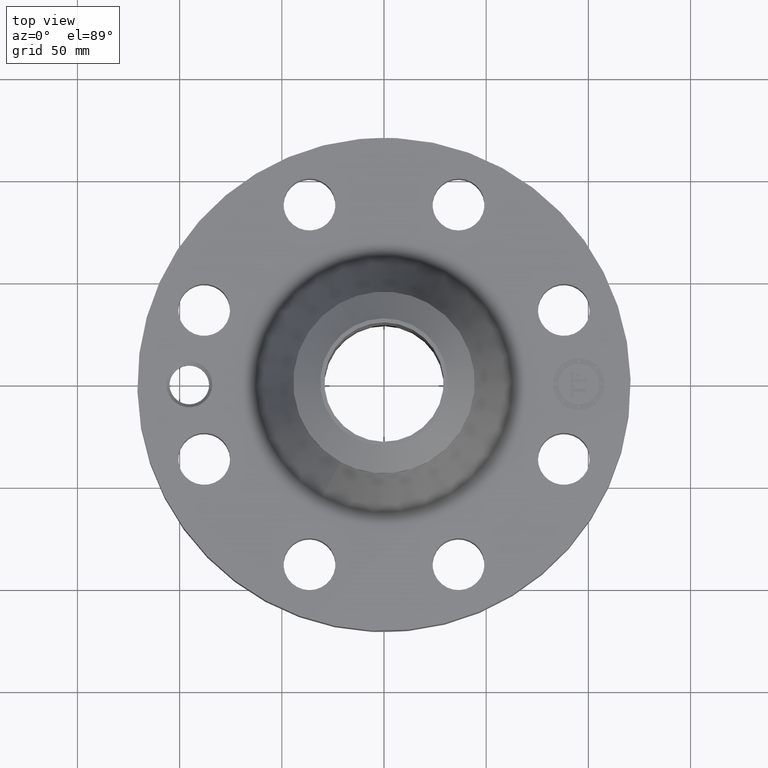
[diagram: clean part render]
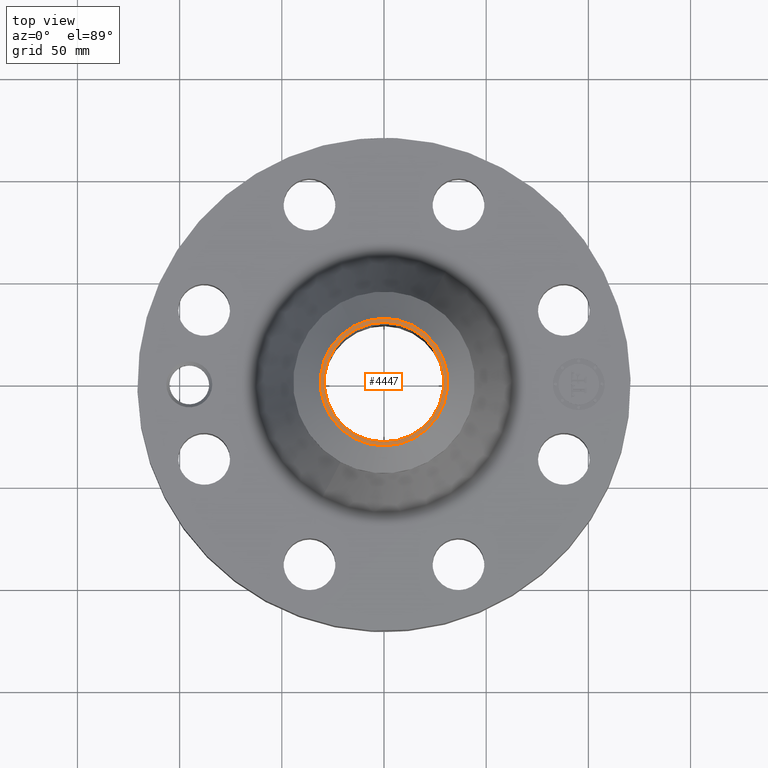
[diagram: same view with one face highlighted and labeled with its STEP entity id]
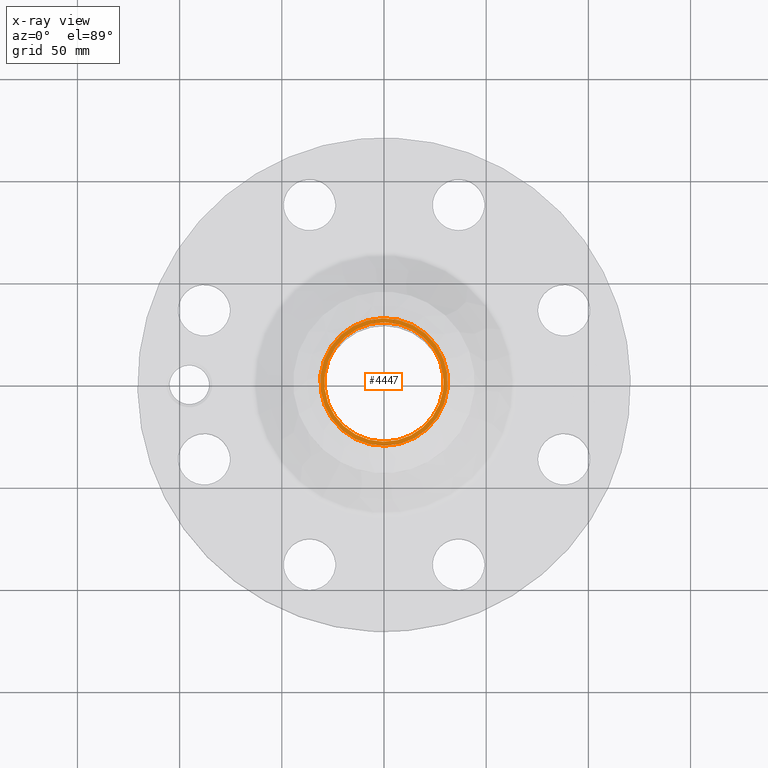
[diagram: x-ray of the same camera — body ghosted, the highlighted face saturated]
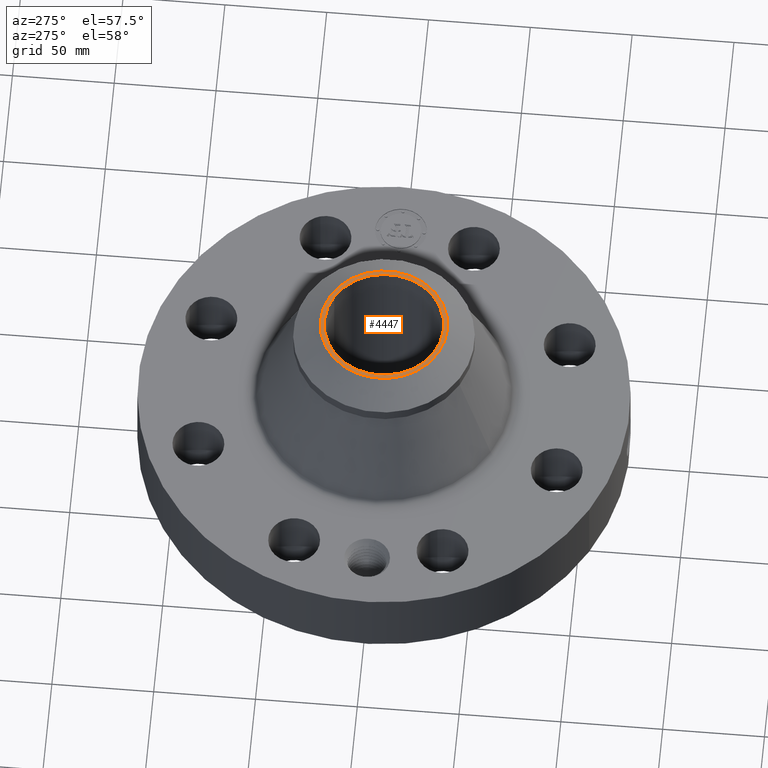
[diagram: same view with one face highlighted and labeled with its STEP entity id]
A machine part, top view. The second image highlights one B-rep face of the part: STEP entity #4447.
The next image is the same camera in x-ray: the body ghosted, the highlighted face saturated — about 0% of this face is hidden behind the body in this view.
A second angle (auxiliary view) of the same face is appended — the face is thin or edge-on in the first view.
In plain terms, the highlighted planar face has unit normal (0, 0, -1).
Its self-contained STEP definition (entity closure, byte-faithful):
#3104=AXIS2_PLACEMENT_3D('Circle Axis2P3D',#3102,#3103,$) ;
#3172=AXIS2_PLACEMENT_3D('Circle Axis2P3D',#3170,#3171,$) ;
#4423=AXIS2_PLACEMENT_3D('Plane Axis2P3D',#4420,#4421,#4422) ;
#4427=AXIS2_PLACEMENT_3D('Circle Axis2P3D',#4425,#4426,$) ;
#4436=AXIS2_PLACEMENT_3D('Circle Axis2P3D',#4434,#4435,$) ;
#3102=CARTESIAN_POINT('Axis2P3D Location',(0.,0.,4.25000000002)) ;
#3106=CARTESIAN_POINT('Vertex',(0.551339369397,1.00921994618,4.25000000002)) ;
#3108=CARTESIAN_POINT('Vertex',(-0.551339369397,-1.00921994618,4.25000000002)) ;
#3170=CARTESIAN_POINT('Axis2P3D Location',(0.,0.,4.25000000002)) ;
#4420=CARTESIAN_POINT('Axis2P3D Location',(0.,1.75000000001,4.25000000002)) ;
#4425=CARTESIAN_POINT('Axis2P3D Location',(0.,0.,4.25000000002)) ;
#4429=CARTESIAN_POINT('Vertex',(0.589089411807,-1.0783209353,4.25000000002)) ;
#4431=CARTESIAN_POINT('Vertex',(-0.589089411807,1.0783209353,4.25000000002)) ;
#4434=CARTESIAN_POINT('Axis2P3D Location',(0.,0.,4.25000000002)) ;
#3103=DIRECTION('Axis2P3D Direction',(0.,0.,-0.0393700787402)) ;
#3171=DIRECTION('Axis2P3D Direction',(0.,0.,-0.0393700787402)) ;
#4421=DIRECTION('Axis2P3D Direction',(0.,0.,-0.0393700787402)) ;
#4422=DIRECTION('Axis2P3D XDirection',(0.0393700787402,0.,0.)) ;
#4426=DIRECTION('Axis2P3D Direction',(0.,0.,-0.0393700787402)) ;
#4435=DIRECTION('Axis2P3D Direction',(0.,0.,-0.0393700787402)) ;
#4440=ORIENTED_EDGE('',*,*,#4433,.T.) ;
#4441=ORIENTED_EDGE('',*,*,#4438,.T.) ;
#4444=ORIENTED_EDGE('',*,*,#3174,.T.) ;
#4445=ORIENTED_EDGE('',*,*,#3110,.T.) ;
#4446=FACE_BOUND('',#4443,.T.) ;
#4447=ADVANCED_FACE('PartBody',(#4442,#4446),#4424,.F.) ;
#3105=CIRCLE('generated circle',#3104,1.15) ;
#3173=CIRCLE('generated circle',#3172,1.15) ;
#4428=CIRCLE('generated circle',#4427,1.22874015748) ;
#4437=CIRCLE('generated circle',#4436,1.22874015748) ;
#3110=EDGE_CURVE('',#3107,#3109,#3105,.T.) ;
#3174=EDGE_CURVE('',#3109,#3107,#3173,.T.) ;
#4433=EDGE_CURVE('',#4430,#4432,#4428,.F.) ;
#4438=EDGE_CURVE('',#4432,#4430,#4437,.F.) ;
#4439=EDGE_LOOP('',(#4440,#4441)) ;
#4443=EDGE_LOOP('',(#4444,#4445)) ;
#4442=FACE_OUTER_BOUND('',#4439,.T.) ;
#4424=PLANE('',#4423) ;
#3107=VERTEX_POINT('',#3106) ;
#3109=VERTEX_POINT('',#3108) ;
#4430=VERTEX_POINT('',#4429) ;
#4432=VERTEX_POINT('',#4431) ;